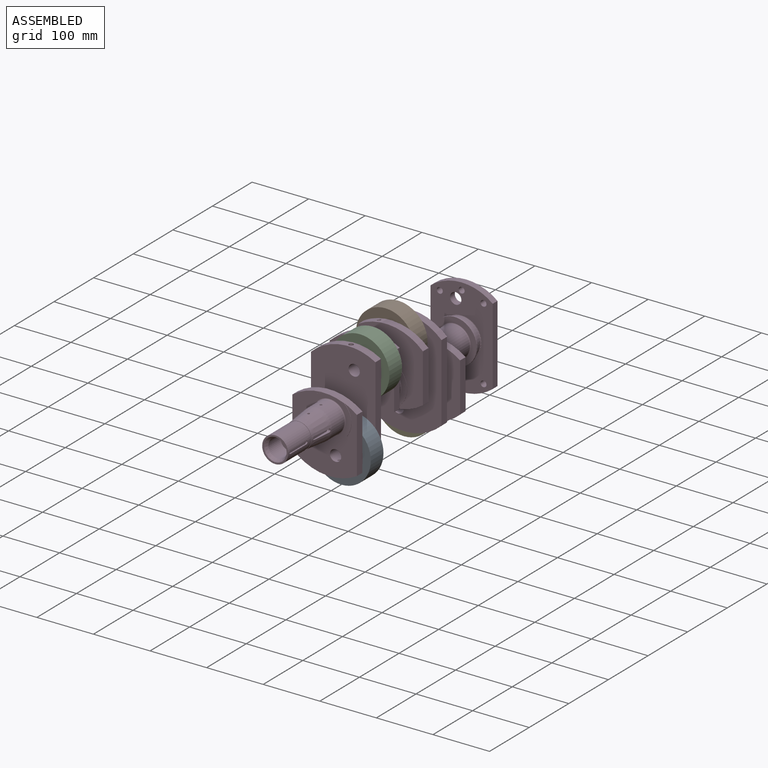
[diagram: assembled view]
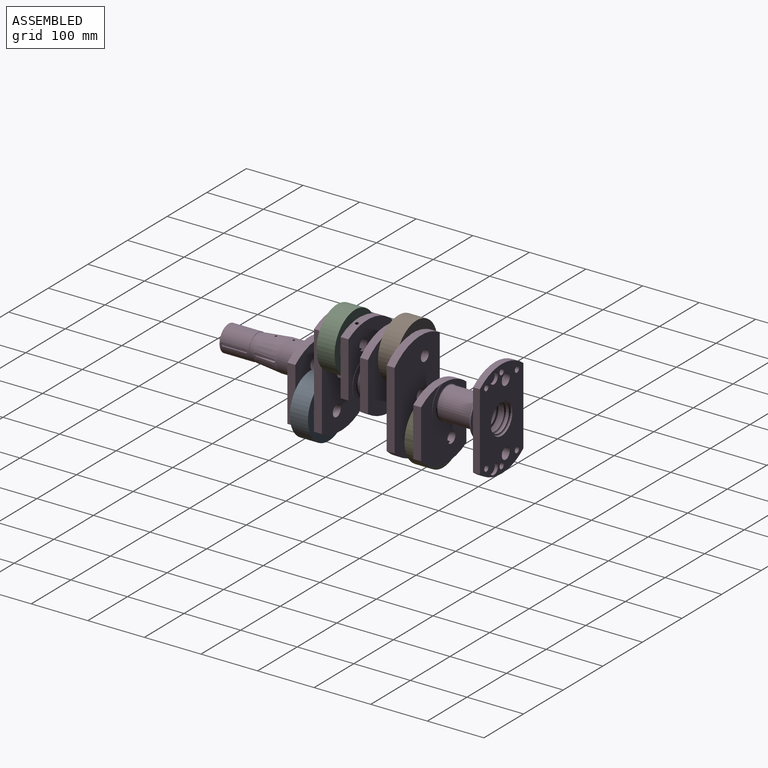
[diagram: assembled view, second angle]
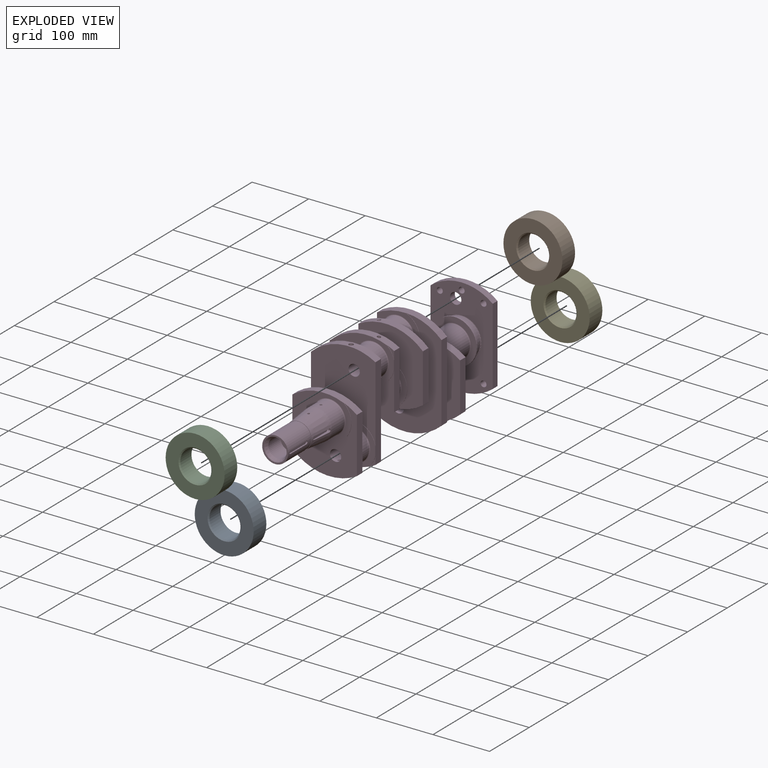
[diagram: exploded view]
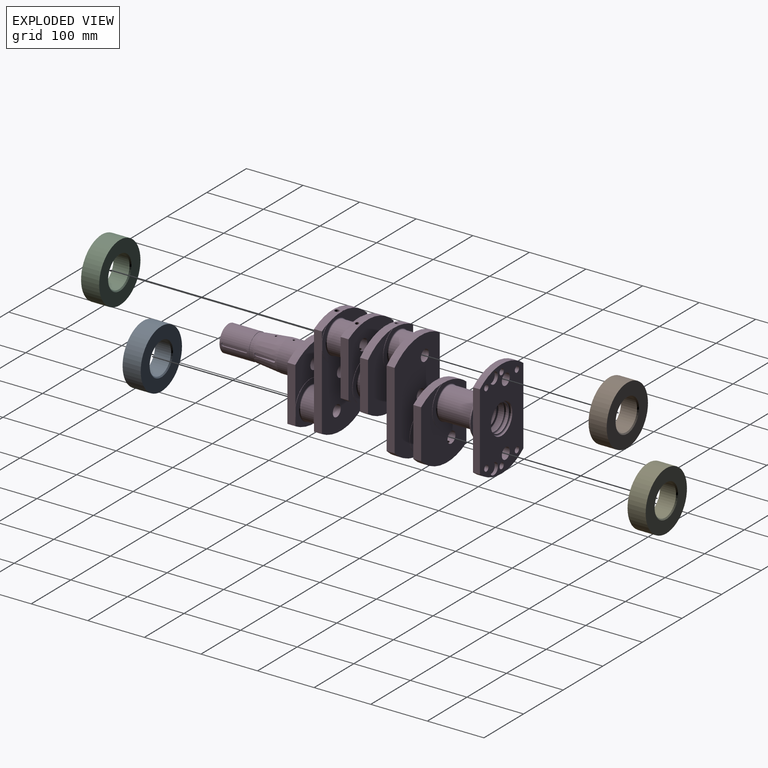
[diagram: exploded view, second angle]
ASSEMBLY  parts=5 mates=4
PART A: 6 faces, bbox 104.2x32x104.2 mm
  f0: cylinder r=27.5mm len=55mm, axis (0,1,0), area 4838.1mm2, adj f4,f5
  f1: cylinder r=52.1mm len=104.2mm, axis (0,1,0), area 10475.3mm2, adj f2,f3
  f2: plane 104.2x104.2mm, normal (0,-1,0), area 5793.6mm2, adj f1,f5
  f3: plane 104.2x104.2mm, normal (0,1,0), area 5793.6mm2, adj f1,f4
  f4: cone r=29.5mm half-angle=45deg, axis (0,1,0), area 506.5mm2, adj f0,f3
  f5: cone r=27.5mm half-angle=45deg, axis (0,-1,0), area 506.5mm2, adj f0,f2
PART B: same geometry as A
PART C: same geometry as A
PART D: 191 faces, bbox 132x482.5x190 mm
  f0: cylinder r=95mm len=114mm, axis (0,-1,0), area 1696mm2, adj f54,f69,f72,f73,f75,f77,f78,f79
  f1: cylinder r=95mm len=114mm, axis (0,1,0), area 1695.8mm2, adj f29,f30,f31,f32,f33,f34,f37,f38
  f2: cylinder r=87.5mm len=110mm, axis (0,-1,0), area 1414.9mm2, adj f14,f97,f107,f108,f147
  f3: cylinder r=10mm len=80mm, axis (0,-1,0), area 5006.7mm2, adj f85,f113,f146
  f4: cylinder r=10mm len=61mm, axis (0,-1,0), area 3793.2mm2, adj f72,f88,f143,f146
  f5: cylinder r=95mm len=114mm, axis (0,-1,0), area 1714.6mm2, adj f81,f82,f83,f84,f85,f87,f88,f89
  f6: cylinder r=10mm len=61mm, axis (0,1,0), area 3793.2mm2, adj f33,f50,f139,f141
  f7: cylinder r=95mm len=114mm, axis (0,1,0), area 1714.5mm2, adj f43,f44,f45,f46,f47,f49,f50,f51
  f8: cylinder r=10mm len=114.5mm, axis (0,1,0), area 7147.4mm2, adj f47,f139,f160,f171,f172,f174
  f9: cylinder r=10mm len=61mm, axis (0,1,0), area 3793.2mm2, adj f16,f55,f131,f135
  f10: cylinder r=95mm len=114mm, axis (0,1,0), area 1714.4mm2, adj f16,f21,f22,f23,f24,f25,f26,f27
  f11: cylinder r=10mm len=61mm, axis (0,1,0), area 3793.1mm2, adj f24,f37,f135,f137
  f12: cylinder r=95mm len=114mm, axis (0,-1,0), area 1714.7mm2, adj f55,f59,f60,f61,f62,f63,f64,f65
  f13: cylinder r=10mm len=61mm, axis (0,-1,0), area 3793.2mm2, adj f62,f75,f131,f133
  f14: plane 175x110mm, normal (0,1,0), area 13827.6mm2, adj f2,f98,f99,f100,f101,f102,f103,f104
  f15: plane 20.51x12.11mm, normal (0,-1,0), area 60mm2, adj f30,f36,f40
  f16: plane 130.84x114mm, normal (0,-1,0), area 8555.8mm2, adj f9,f10,f19,f21,f22,f26
  f17: cylinder r=27.5mm len=55mm, axis (0,1,0), area 5010.8mm2, adj f177,f186
  f18: cylinder r=38.5mm len=77mm, axis (0,1,0), area 99.8mm2, adj f19,f20,f24
  f19: cylinder r=95mm len=114mm, axis (0,1,0), area 1732.3mm2, adj f16,f18,f20,f21,f22,f24
  f20: plane 77x74.41mm, normal (0,1,0), area 1918.7mm2, adj f18,f19,f186
  f21: plane 97.81x14.5mm, normal (1,0,0), area 1377.7mm2, adj f10,f16,f19,f23,f24,f25,f26,f27
  f22: plane 86.29x14mm, normal (-1,0,0), area 1208mm2, adj f10,f16,f19,f24
  f23: plane 20.51x12.11mm, normal (0,-1,0), area 60mm2, adj f10,f21,f25
  f24: plane 130.84x114mm, normal (0,1,0), area 8605.6mm2, adj f10,f11,f18,f19,f21,f22
  f25: cylinder r=38.5mm len=20.51mm, axis (0,1,0), area 12.1mm2, adj f10,f21,f23,f27
  f26: cylinder r=38.5mm len=76.08mm, axis (0,1,0), area 79.3mm2, adj f10,f16,f21,f27
  f27: plane 76.08x74.41mm, normal (0,-1,0), area 1908.4mm2, adj f10,f21,f25,f26,f184
  f28: cylinder r=27.5mm len=55mm, axis (0,1,0), area 5010.8mm2, adj f184,f185
  f29: cylinder r=38.5mm len=76.08mm, axis (0,1,0), area 79.3mm2, adj f1,f30,f32,f33
  f30: plane 163.96x15mm, normal (1,0,0), area 2312.2mm2, adj f1,f15,f29,f31,f32,f33,f36,f37
  f31: cylinder r=38.5mm len=20.51mm, axis (0,1,0), area 12.1mm2, adj f1,f30,f32,f38
  f32: plane 76.08x74.41mm, normal (0,1,0), area 1908.4mm2, adj f1,f29,f30,f31,f185
  f33: plane 189.93x114mm, normal (0,1,0), area 14918.2mm2, adj f1,f6,f29,f30,f34,f35,f36
  f34: plane 136.66x14mm, normal (-1,0,0), area 1913.2mm2, adj f1,f33,f36,f37
  f35: cylinder r=10mm len=20mm, axis (0,1,0), area 879.6mm2, adj f33,f37
  f36: cylinder r=95mm len=114mm, axis (0,1,0), area 1746.2mm2, adj f15,f30,f33,f34,f37,f39,f40,f41
  f37: plane 189.93x114mm, normal (0,-1,0), area 14918.2mm2, adj f1,f11,f30,f34,f35,f36,f39
  f38: plane 20.51x12.11mm, normal (0,1,0), area 60mm2, adj f1,f30,f31
  f39: cylinder r=38.5mm len=76.08mm, axis (0,1,0), area 79.3mm2, adj f30,f36,f37,f41
  f40: cylinder r=38.5mm len=20.51mm, axis (0,1,0), area 12.1mm2, adj f15,f30,f36,f41
  f41: plane 76.08x74.41mm, normal (0,-1,0), area 1908.4mm2, adj f30,f36,f39,f40,f182
  f42: cylinder r=27.5mm len=55mm, axis (0,1,0), area 5010.8mm2, adj f182,f183
  f43: plane 97.81x14.5mm, normal (1,0,0), area 1377.7mm2, adj f7,f44,f45,f46,f47,f48,f50,f51
  f44: cylinder r=38.5mm len=76.08mm, axis (0,1,0), area 79.3mm2, adj f7,f43,f46,f47
  f45: cylinder r=38.5mm len=20.51mm, axis (0,1,0), area 12.1mm2, adj f7,f43,f46,f51
  f46: plane 76.08x74.41mm, normal (0,1,0), area 1908.4mm2, adj f7,f43,f44,f45,f183
  f47: plane 130.84x114mm, normal (0,1,0), area 8555.8mm2, adj f7,f8,f43,f44,f48,f49
  f48: cylinder r=95mm len=114mm, axis (0,1,0), area 1732.3mm2, adj f43,f47,f49,f50,f52,f53
  f49: plane 86.29x14mm, normal (-1,0,0), area 1208mm2, adj f7,f47,f48,f50
  f50: plane 130.84x114mm, normal (0,-1,0), area 8605.6mm2, adj f6,f7,f43,f48,f49,f52
  f51: plane 20.51x12.11mm, normal (0,1,0), area 60mm2, adj f7,f43,f45
  f52: cylinder r=38.5mm len=77mm, axis (0,1,0), area 99.8mm2, adj f48,f50,f53
  f53: plane 77x74.41mm, normal (0,-1,0), area 1918.7mm2, adj f48,f52,f176
  f54: plane 20.51x12.11mm, normal (0,1,0), area 60mm2, adj f0,f69,f78
  f55: plane 130.84x114mm, normal (0,1,0), area 8555.8mm2, adj f9,f12,f57,f59,f60,f64
  f56: cylinder r=38.5mm len=77mm, axis (0,-1,0), area 99.8mm2, adj f57,f58,f62
  f57: cylinder r=95mm len=114mm, axis (0,-1,0), area 1732.3mm2, adj f55,f56,f58,f59,f60,f62
  f58: plane 77x74.41mm, normal (0,-1,0), area 1918.7mm2, adj f56,f57,f177
  f59: plane 97.81x14.5mm, normal (-1,0,0), area 1377.7mm2, adj f12,f55,f57,f61,f62,f63,f64,f65
  f60: plane 86.29x14mm, normal (1,0,0), area 1208mm2, adj f12,f55,f57,f62
  f61: plane 20.51x12.11mm, normal (0,1,0), area 60mm2, adj f12,f59,f63
  f62: plane 130.84x114mm, normal (0,-1,0), area 8605.6mm2, adj f12,f13,f56,f57,f59,f60
  f63: cylinder r=38.5mm len=20.51mm, axis (0,-1,0), area 12.1mm2, adj f12,f59,f61,f65
  f64: cylinder r=38.5mm len=76.08mm, axis (0,-1,0), area 79.3mm2, adj f12,f55,f59,f65
  f65: plane 76.08x74.41mm, normal (0,1,0), area 1908.4mm2, adj f12,f59,f63,f64,f178
  f66: cylinder r=27.5mm len=55mm, axis (0,-1,0), area 5010.8mm2, adj f178,f179
  f67: cylinder r=95mm len=114mm, axis (0,-1,0), area 1746.2mm2, adj f68,f69,f70,f71,f72,f73,f75,f76
  f68: cylinder r=38.5mm len=76.08mm, axis (0,-1,0), area 79.3mm2, adj f67,f69,f71,f72
  f69: plane 163.96x15mm, normal (-1,0,0), area 2312.2mm2, adj f0,f54,f67,f68,f70,f71,f72,f75
  f70: cylinder r=38.5mm len=20.51mm, axis (0,-1,0), area 12.1mm2, adj f67,f69,f71,f76
  f71: plane 76.08x74.41mm, normal (0,-1,0), area 1908.4mm2, adj f67,f68,f69,f70,f179
  f72: plane 189.93x114mm, normal (0,-1,0), area 14918.2mm2, adj f0,f4,f67,f68,f69,f73,f74
  f73: plane 136.66x14mm, normal (1,0,0), area 1913.2mm2, adj f0,f67,f72,f75
  f74: cylinder r=10mm len=20mm, axis (0,-1,0), area 879.6mm2, adj f72,f75
  f75: plane 189.93x114mm, normal (0,1,0), area 14918.2mm2, adj f0,f13,f67,f69,f73,f74,f77
  f76: plane 20.51x12.11mm, normal (0,-1,0), area 60mm2, adj f67,f69,f70
  f77: cylinder r=38.5mm len=76.08mm, axis (0,-1,0), area 79.3mm2, adj f0,f69,f75,f79
  f78: cylinder r=38.5mm len=20.51mm, axis (0,-1,0), area 12.1mm2, adj f0,f54,f69,f79
  f79: plane 76.08x74.41mm, normal (0,1,0), area 1908.4mm2, adj f0,f69,f77,f78,f181
  f80: cylinder r=27.5mm len=55mm, axis (0,-1,0), area 5010.8mm2, adj f180,f181
  f81: plane 97.81x14.5mm, normal (-1,0,0), area 1377.7mm2, adj f5,f82,f83,f84,f85,f86,f88,f89
  f82: cylinder r=38.5mm len=76.08mm, axis (0,-1,0), area 79.3mm2, adj f5,f81,f84,f85
  f83: cylinder r=38.5mm len=20.51mm, axis (0,-1,0), area 12.1mm2, adj f5,f81,f84,f89
  f84: plane 76.08x74.41mm, normal (0,-1,0), area 1908.4mm2, adj f5,f81,f82,f83,f180
  f85: plane 130.84x114mm, normal (0,-1,0), area 8555.8mm2, adj f3,f5,f81,f82,f86,f87
  f86: cylinder r=95mm len=114mm, axis (0,-1,0), area 1732.3mm2, adj f81,f85,f87,f88,f90,f91
  f87: plane 86.29x14mm, normal (1,0,0), area 1208mm2, adj f5,f85,f86,f88
  f88: plane 130.84x114mm, normal (0,1,0), area 8605.6mm2, adj f4,f5,f81,f86,f87,f90
  f89: plane 20.51x12.11mm, normal (0,-1,0), area 60mm2, adj f5,f81,f83
  f90: cylinder r=38.5mm len=77mm, axis (0,-1,0), area 99.8mm2, adj f86,f88,f91
  f91: plane 77x74.41mm, normal (0,1,0), area 1918.7mm2, adj f86,f90,f129
  f92: cylinder r=27.5mm len=63mm, axis (0,-1,0), area 10885.6mm2, adj f129,f130
  f93: cylinder r=39mm len=78mm, axis (0,-1,0), area 490.1mm2, adj f94,f95
  f94: plane 78x78mm, normal (0,1,0), area 1252.7mm2, adj f93,f96
  f95: plane 78x78mm, normal (0,-1,0), area 2136.3mm2, adj f93,f130
  f96: cylinder r=33.5mm len=67mm, axis (0,-1,0), area 2946.8mm2, adj f94,f128
  f97: plane 175x110mm, normal (0,-1,0), area 12897.7mm2, adj f2,f98,f99,f100,f101,f102,f103,f104
  f98: cylinder r=5.25mm len=12mm, axis (0,-1,0), area 395.8mm2, adj f14,f97
  f99: cylinder r=87.5mm len=110mm, axis (0,-1,0), area 1427.4mm2, adj f14,f97,f107,f108
  f100: cylinder r=5.25mm len=12mm, axis (0,-1,0), area 395.8mm2, adj f14,f97
  f101: cylinder r=5.25mm len=12mm, axis (0,-1,0), area 395.8mm2, adj f14,f97
  f102: cylinder r=5.25mm len=12mm, axis (0,-1,0), area 395.8mm2, adj f14,f97
  f103: cylinder r=10mm len=20mm, axis (0,-1,0), area 754mm2, adj f14,f97
  f104: cylinder r=10mm len=20mm, axis (0,-1,0), area 754mm2, adj f14,f97
  f105: cylinder r=5.25mm len=12mm, axis (0,-1,0), area 395.8mm2, adj f14,f97
  f106: cylinder r=5.25mm len=12mm, axis (0,-1,0), area 395.8mm2, adj f14,f97
  f107: plane 136.11x12mm, normal (1,0,0), area 1633.3mm2, adj f2,f14,f97,f99
  f108: plane 136.11x12mm, normal (-1,0,0), area 1633.3mm2, adj f2,f14,f97,f99
  f109: cylinder r=10mm len=20mm, axis (0,1,0), area 345.6mm2, adj f14,f110
  f110: plane 20x20mm, normal (0,1,0), area 314.2mm2, adj f109
  f111: cylinder r=10mm len=20mm, axis (0,1,0), area 345.6mm2, adj f14,f112
  f112: plane 20x20mm, normal (0,1,0), area 314.2mm2, adj f111
  f113: plane 30x30mm, normal (0,1,0), area 392.7mm2, adj f3,f123
  f114: cylinder r=19mm len=38mm, axis (0,-1,0), area 358.1mm2, adj f122,f123
  f115: cylinder r=27mm len=54mm, axis (0,-1,0), area 339.3mm2, adj f14,f125
  f116: plane 50x50mm, normal (0,1,0), area 191.4mm2, adj f117,f125
  f117: cylinder r=23.75mm len=47.5mm, axis (0,-1,0), area 298.5mm2, adj f116,f118
  f118: plane 48x48mm, normal (0,-1,0), area 37.5mm2, adj f117,f126
  f119: cylinder r=26mm len=52mm, axis (0,-1,0), area 326.7mm2, adj f126,f127
  f120: plane 48x48mm, normal (0,1,0), area 74.6mm2, adj f121,f127
  f121: cylinder r=23.5mm len=47mm, axis (0,-1,0), area 1476.5mm2, adj f120,f124
  f122: plane 45x45mm, normal (0,1,0), area 456.3mm2, adj f114,f124
  f123: torus R=15mm, axis (0,1,0), area 692.7mm2, adj f113,f114
  f124: torus R=22.5mm, axis (0,1,0), area 228.3mm2, adj f121,f122
  f125: torus R=25mm, axis (0,1,0), area 518.6mm2, adj f115,f116
  f126: torus R=24mm, axis (0,-1,0), area 498.9mm2, adj f118,f119
  f127: torus R=24mm, axis (0,1,0), area 498.9mm2, adj f119,f120
  f128: torus R=35mm, axis (0,1,0), area 504mm2, adj f96,f97
  f129: torus R=29mm, axis (0,1,0), area 415.2mm2, adj f91,f92
  f130: torus R=29mm, axis (0,1,0), area 415.2mm2, adj f92,f95
  f131: cylinder r=2.5mm len=40.89mm, axis (-0.17,0,0.98), area 633.3mm2, adj f9,f13
  f132: cylinder r=3.17mm len=10.95mm, axis (-0.17,0,0.98), area 199mm2, adj f12,f134
  f133: cylinder r=2.5mm len=15.95mm, axis (-0.17,0,0.98), area 238.1mm2, adj f13,f134
  f134: plane 6.35x6.25mm, normal (-0.17,0,0.98), area 12mm2, adj f132,f133
  f135: cylinder r=2.5mm len=40.89mm, axis (0.17,0,0.98), area 633.3mm2, adj f9,f11
  f136: cylinder r=3.17mm len=10.95mm, axis (0.17,0,0.98), area 199mm2, adj f10,f138
  f137: cylinder r=2.5mm len=15.95mm, axis (0.17,0,0.98), area 238.1mm2, adj f11,f138
  f138: plane 6.35x6.25mm, normal (0.17,0,0.98), area 12mm2, adj f136,f137
  f139: cylinder r=2.5mm len=40.89mm, axis (0.17,0,-0.98), area 633.3mm2, adj f6,f8
  f140: cylinder r=3.17mm len=10.95mm, axis (0.17,0,-0.98), area 199mm2, adj f7,f142
  f141: cylinder r=2.5mm len=15.95mm, axis (0.17,0,-0.98), area 238.1mm2, adj f6,f142
  f142: plane 6.35x6.25mm, normal (0.17,0,-0.98), area 12mm2, adj f140,f141
  f143: cylinder r=2.5mm len=15.95mm, axis (-0.17,0,-0.98), area 238.1mm2, adj f4,f144
  f144: plane 6.35x6.25mm, normal (-0.17,0,-0.98), area 12mm2, adj f143,f145
  f145: cylinder r=3.17mm len=10.95mm, axis (-0.17,0,-0.98), area 199mm2, adj f5,f144
  f146: cylinder r=2.5mm len=40.89mm, axis (-0.17,0,-0.98), area 633.3mm2, adj f3,f4
  f147: cylinder r=2mm len=54.01mm, axis (-0.39,0,0.92), area 716mm2, adj f2,f148
  f148: cone r=0mm half-angle=59deg, axis (-0.39,0,0.92), area 14.7mm2, adj f147
  f149: cone r=27.5mm half-angle=5.7deg, axis (0,1,0), area 6933.7mm2, adj f150,f152,f161,f162,f163,f164,f173
  f150: cylinder r=27.5mm len=55mm, axis (0,1,0), area 5417.7mm2, adj f149,f171,f172,f176
  f151: cylinder r=23mm len=52mm, axis (0,-1,0), area 7245.7mm2, adj f154,f155,f166,f167,f168,f169
  f152: plane 46x46mm, normal (0,-1,0), area 71.5mm2, adj f149,f153
  f153: cylinder r=22.5mm len=45mm, axis (0,-1,0), area 989.6mm2, adj f152,f154
  f154: plane 46x46mm, normal (0,1,0), area 71.5mm2, adj f151,f153
  f155: plane 46x46mm, normal (0,-1,0), area 341.6mm2, adj f151,f156
  f156: cylinder r=20.5mm len=41mm, axis (0,-1,0), area 64.4mm2, adj f155,f157
  f157: plane 41x41mm, normal (0,-1,0), area 73.8mm2, adj f156,f158
  f158: cone r=16.5mm half-angle=30deg, axis (0,-1,0), area 782.3mm2, adj f157,f159
  f159: cylinder r=16.5mm len=33mm, axis (0,-1,0), area 3170.2mm2, adj f158,f160
  f160: plane 33x33mm, normal (0,-1,0), area 541.1mm2, adj f8,f159
  f161: cylinder r=3mm len=6mm, axis (1,0,0), area 17.1mm2, adj f149,f162,f164,f165
  f162: plane 33.03x5.26mm, normal (0,0,1), area 117.8mm2, adj f149,f161,f163,f165
  f163: cylinder r=3mm len=6mm, axis (1,0,0), area 51.9mm2, adj f149,f162,f164,f165
  f164: plane 33.03x5.26mm, normal (0,0,-1), area 117.8mm2, adj f149,f161,f163,f165
  f165: plane 39x6mm, normal (1,0,0), area 226.3mm2, adj f161,f162,f163,f164
  f166: plane 40x2.3mm, normal (0,0,1), area 92.1mm2, adj f151,f167,f169,f170
  f167: cylinder r=3mm len=6mm, axis (1,0,0), area 22.6mm2, adj f151,f166,f168,f170
  f168: plane 40x2.3mm, normal (0,0,-1), area 92.1mm2, adj f151,f167,f169,f170
  f169: cylinder r=3mm len=6mm, axis (1,0,0), area 22.6mm2, adj f151,f166,f168,f170
  f170: plane 46x6mm, normal (1,0,0), area 268.3mm2, adj f166,f167,f168,f169
  f171: cylinder r=2mm len=17.7mm, axis (0,0,1), area 220.7mm2, adj f8,f150
  f172: cylinder r=2mm len=17.7mm, axis (0,0,1), area 220.7mm2, adj f8,f150
  f173: cylinder r=2mm len=14.7mm, axis (0,0,1), area 181.7mm2, adj f149,f175
  f174: cylinder r=0.75mm len=1.5mm, axis (0,0,1), area 4.8mm2, adj f8,f175
  f175: plane 4x4mm, normal (0,0,1), area 10.8mm2, adj f173,f174
  f176: torus R=29mm, axis (0,-1,0), area 415.2mm2, adj f53,f150
  f177: torus R=29mm, axis (0,1,0), area 415.2mm2, adj f17,f58
  f178: torus R=29mm, axis (0,1,0), area 415.2mm2, adj f65,f66
  f179: torus R=29mm, axis (0,1,0), area 415.2mm2, adj f66,f71
  f180: torus R=29mm, axis (0,1,0), area 415.2mm2, adj f80,f84
  f181: torus R=29mm, axis (0,1,0), area 415.2mm2, adj f79,f80
  f182: torus R=29mm, axis (0,-1,0), area 415.2mm2, adj f41,f42
  f183: torus R=29mm, axis (0,-1,0), area 415.2mm2, adj f42,f46
  f184: torus R=29mm, axis (0,-1,0), area 415.2mm2, adj f27,f28
  f185: torus R=29mm, axis (0,-1,0), area 415.2mm2, adj f28,f32
  f186: torus R=29mm, axis (0,-1,0), area 415.2mm2, adj f17,f20
  f187: cylinder r=4mm len=11mm, axis (0,0,1), area 275.4mm2, adj f1,f188
  f188: cone r=0mm half-angle=59deg, axis (0,0,1), area 58.6mm2, adj f187
  f189: cylinder r=4mm len=11mm, axis (0,0,-1), area 275.4mm2, adj f0,f190
  f190: cone r=0mm half-angle=59deg, axis (0,0,-1), area 58.6mm2, adj f189
PART E: same geometry as A
PLACE A t=(10.42,-57.25,-59.09)mm
PLACE B t=(-10.42,83.75,59.09)mm
PLACE C t=(10.42,-10.25,59.09)mm
PLACE D t=(0,20.75,0)mm
PLACE E t=(-10.42,130.75,-59.09)mm
MATE revolute B.f0 <-> D.f13  axis (0,1,0) through (-10.42,67.75,59.09)mm
MATE revolute C.f0 <-> D.f11  axis (0,1,0) through (10.42,-26.25,59.09)mm
MATE revolute A.f0 <-> D.f6  axis (0,1,0) through (10.42,-73.25,-59.09)mm
MATE revolute E.f0 <-> D.f4  axis (0,1,0) through (-10.42,114.75,-59.09)mm
